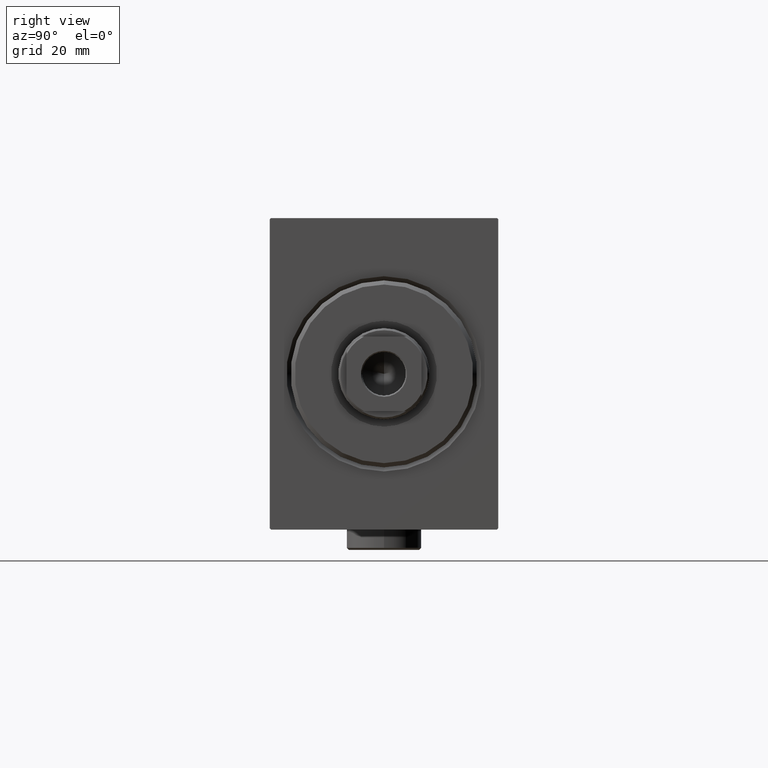
[diagram: clean part render]
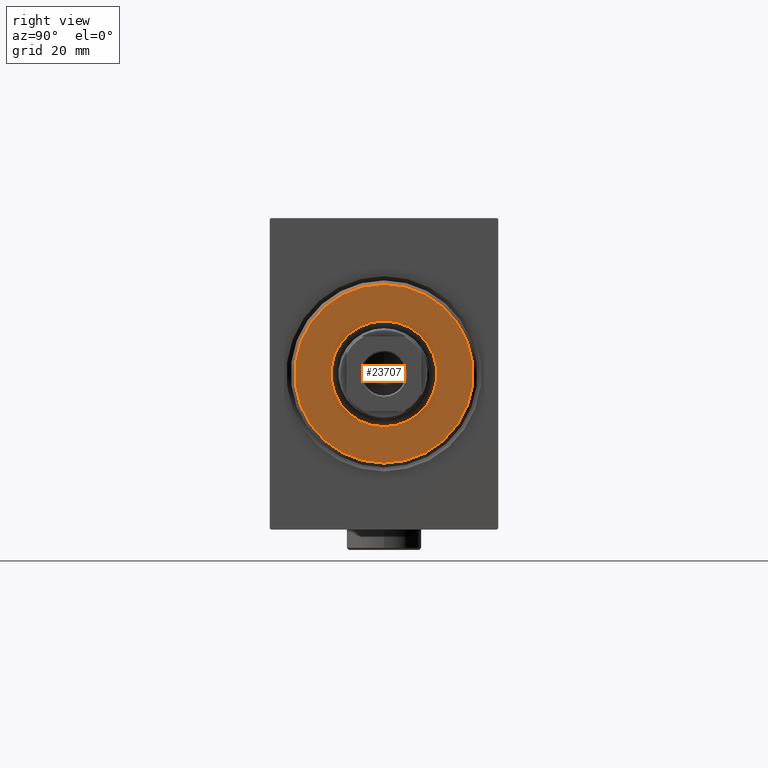
[diagram: same view with one face highlighted and labeled with its STEP entity id]
A machine part, right view. The second image highlights one B-rep face of the part: STEP entity #23707.
In plain terms, the highlighted planar face has unit normal (1, 0, 0).
Its self-contained STEP definition (entity closure, byte-faithful):
#91 = EDGE_CURVE ( 'NONE', #27000, #26338, #16737, .T. ) ;
#1357 = VERTEX_POINT ( 'NONE', #44050 ) ;
#5135 = ORIENTED_EDGE ( 'NONE', *, *, #91, .T. ) ;
#5452 = CARTESIAN_POINT ( 'NONE',  ( 3.000000000000000000, 1.561424668912874914E-15, -12.75000000000000000 ) ) ;
#5507 = AXIS2_PLACEMENT_3D ( 'NONE', #11820, #15184, #17880 ) ;
#6133 = CIRCLE ( 'NONE', #28302, 21.50000000000000000 ) ;
#6460 = VERTEX_POINT ( 'NONE', #38980 ) ;
#7824 = CARTESIAN_POINT ( 'NONE',  ( 3.000000000000000000, 0.000000000000000000, 0.000000000000000000 ) ) ;
#8519 = FACE_OUTER_BOUND ( 'NONE', #22444, .T. ) ;
#10069 = DIRECTION ( 'NONE',  ( 0.000000000000000000, 0.000000000000000000, -1.000000000000000000 ) ) ;
#10125 = ORIENTED_EDGE ( 'NONE', *, *, #33299, .T. ) ;
#11820 = CARTESIAN_POINT ( 'NONE',  ( 3.000000000000000000, 0.000000000000000000, 0.000000000000000000 ) ) ;
#13272 = CARTESIAN_POINT ( 'NONE',  ( 3.000000000000000000, 0.000000000000000000, 0.000000000000000000 ) ) ;
#14563 = DIRECTION ( 'NONE',  ( -1.000000000000000000, 0.000000000000000000, -0.000000000000000000 ) ) ;
#15184 = DIRECTION ( 'NONE',  ( 1.000000000000000000, -0.000000000000000000, 0.000000000000000000 ) ) ;
#16737 = CIRCLE ( 'NONE', #34592, 12.75000000000000000 ) ;
#17880 = DIRECTION ( 'NONE',  ( 0.000000000000000000, 0.000000000000000000, -1.000000000000000000 ) ) ;
#19049 = DIRECTION ( 'NONE',  ( 0.000000000000000000, 0.000000000000000000, -1.000000000000000000 ) ) ;
#22420 = FACE_BOUND ( 'NONE', #22425, .T. ) ;
#22425 = EDGE_LOOP ( 'NONE', ( #5135, #29898 ) ) ;
#22444 = EDGE_LOOP ( 'NONE', ( #44250, #10125 ) ) ;
#22592 = AXIS2_PLACEMENT_3D ( 'NONE', #7824, #14563, #31570 ) ;
#23707 = ADVANCED_FACE ( 'NONE', ( #8519, #22420 ), #32481, .T. ) ;
#24830 = CIRCLE ( 'NONE', #5507, 21.50000000000000000 ) ;
#25713 = EDGE_CURVE ( 'NONE', #26338, #27000, #30450, .T. ) ;
#25774 = DIRECTION ( 'NONE',  ( 1.000000000000000000, -0.000000000000000000, 0.000000000000000000 ) ) ;
#26338 = VERTEX_POINT ( 'NONE', #5452 ) ;
#26875 = DIRECTION ( 'NONE',  ( 1.000000000000000000, -0.000000000000000000, 0.000000000000000000 ) ) ;
#26935 = DIRECTION ( 'NONE',  ( -1.000000000000000000, 0.000000000000000000, -0.000000000000000000 ) ) ;
#27000 = VERTEX_POINT ( 'NONE', #43325 ) ;
#28302 = AXIS2_PLACEMENT_3D ( 'NONE', #37609, #26875, #10069 ) ;
#29426 = EDGE_CURVE ( 'NONE', #1357, #6460, #6133, .T. ) ;
#29898 = ORIENTED_EDGE ( 'NONE', *, *, #25713, .T. ) ;
#30450 = CIRCLE ( 'NONE', #22592, 12.75000000000000000 ) ;
#31570 = DIRECTION ( 'NONE',  ( 0.000000000000000000, 0.000000000000000000, -1.000000000000000000 ) ) ;
#32481 = PLANE ( 'NONE',  #37572 ) ;
#33133 = CARTESIAN_POINT ( 'NONE',  ( 3.000000000000000000, 0.000000000000000000, 0.000000000000000000 ) ) ;
#33299 = EDGE_CURVE ( 'NONE', #6460, #1357, #24830, .T. ) ;
#34592 = AXIS2_PLACEMENT_3D ( 'NONE', #13272, #26935, #40575 ) ;
#37572 = AXIS2_PLACEMENT_3D ( 'NONE', #33133, #25774, #19049 ) ;
#37609 = CARTESIAN_POINT ( 'NONE',  ( 3.000000000000000000, 0.000000000000000000, 0.000000000000000000 ) ) ;
#38980 = CARTESIAN_POINT ( 'NONE',  ( 3.000000000000000000, 2.694222958124177204E-15, -21.50000000000000000 ) ) ;
#40575 = DIRECTION ( 'NONE',  ( 0.000000000000000000, 0.000000000000000000, -1.000000000000000000 ) ) ;
#43325 = CARTESIAN_POINT ( 'NONE',  ( 3.000000000000000000, 0.000000000000000000, 12.75000000000000000 ) ) ;
#44050 = CARTESIAN_POINT ( 'NONE',  ( 3.000000000000000000, 0.000000000000000000, 21.50000000000000000 ) ) ;
#44250 = ORIENTED_EDGE ( 'NONE', *, *, #29426, .T. ) ;